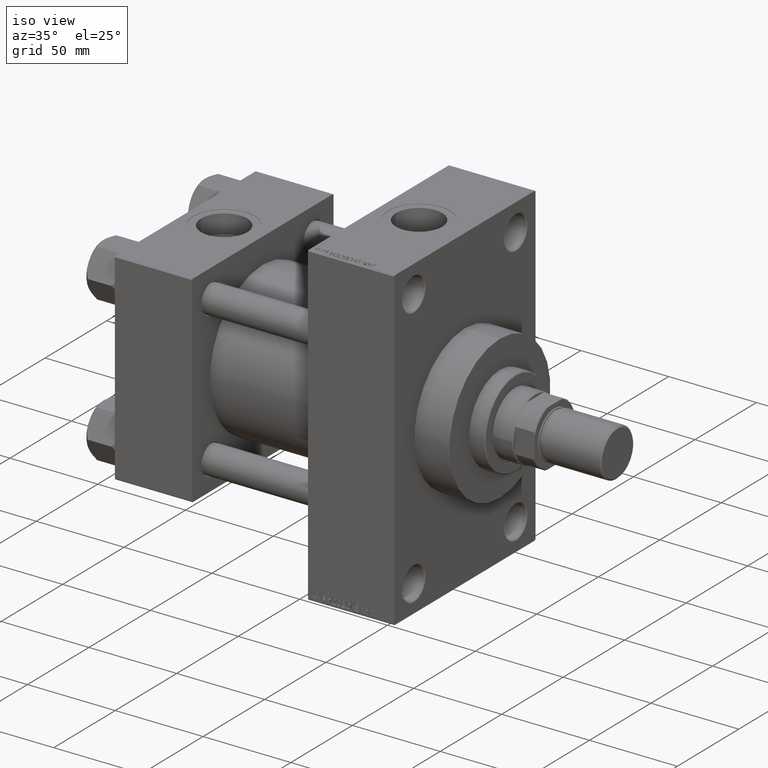
[diagram: clean part render]
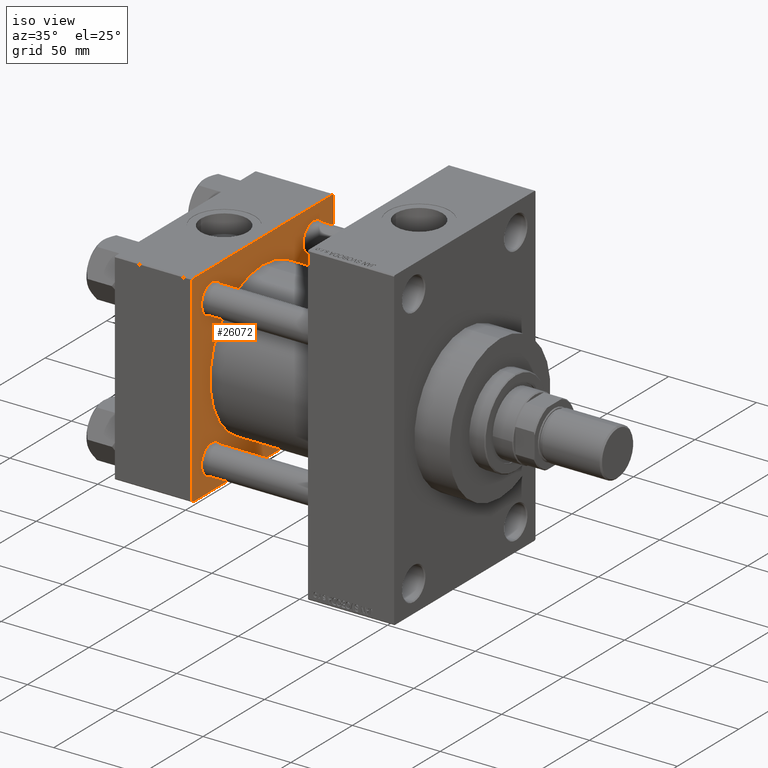
[diagram: same view with one face highlighted and labeled with its STEP entity id]
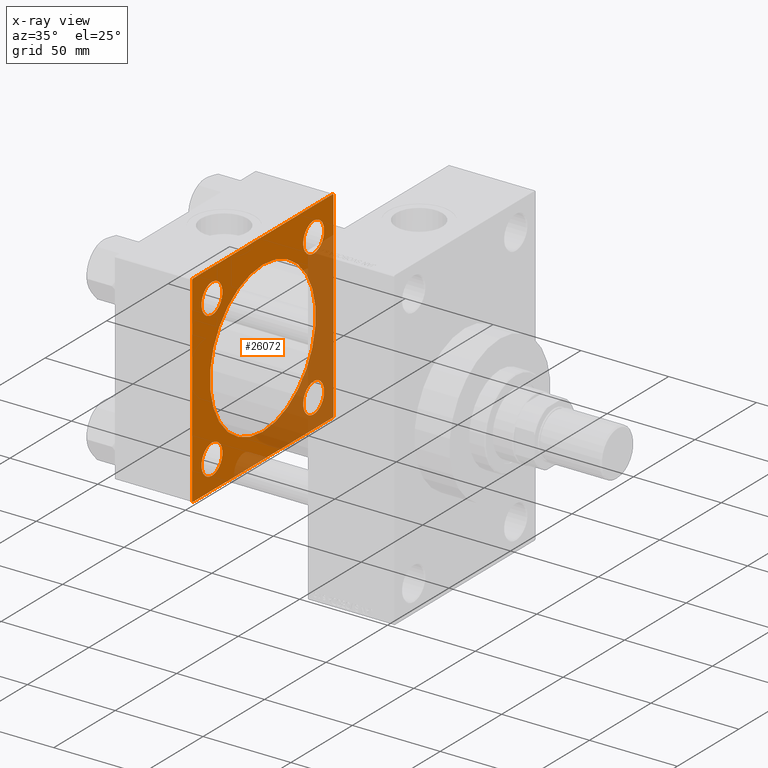
[diagram: x-ray of the same camera — body ghosted, the highlighted face saturated]
A machine part, iso view. The second image highlights one B-rep face of the part: STEP entity #26072.
The next image is the same camera in x-ray: the body ghosted, the highlighted face saturated — about 37% of this face is hidden behind the body in this view.
In plain terms, the highlighted planar face has unit normal (-1, 0, 0).
Its self-contained STEP definition (entity closure, byte-faithful):
#60 = CARTESIAN_POINT ( 'NONE',  ( 44.00000000000000000, -57.50000000000000711, -57.00000000000000711 ) ) ;
#327 = DIRECTION ( 'NONE',  ( 0.000000000000000000, -1.000000000000000000, -1.206764157201257045E-16 ) ) ;
#557 = ORIENTED_EDGE ( 'NONE', *, *, #47289, .T. ) ;
#938 = CARTESIAN_POINT ( 'NONE',  ( 44.00000000000000000, -57.50000000000000711, 57.00000000000000711 ) ) ;
#1040 = EDGE_LOOP ( 'NONE', ( #42411, #4625 ) ) ;
#1802 = VERTEX_POINT ( 'NONE', #4160 ) ;
#2218 = CARTESIAN_POINT ( 'NONE',  ( 44.00000000000000000, -57.00000000000000711, -57.50000000000000711 ) ) ;
#2308 = CARTESIAN_POINT ( 'NONE',  ( 44.00000000000000000, 57.00000000000000711, 57.50000000000000711 ) ) ;
#2398 = VERTEX_POINT ( 'NONE', #938 ) ;
#2480 = LINE ( 'NONE', #10520, #8208 ) ;
#2962 = DIRECTION ( 'NONE',  ( -0.000000000000000000, -0.7071067811865376918, -0.7071067811865573427 ) ) ;
#3523 = CARTESIAN_POINT ( 'NONE',  ( 44.00000000000000000, 57.49999999999999289, -57.00000000000000711 ) ) ;
#3969 = EDGE_CURVE ( 'NONE', #18703, #38638, #10614, .T. ) ;
#3995 = EDGE_LOOP ( 'NONE', ( #557, #7710 ) ) ;
#4160 = CARTESIAN_POINT ( 'NONE',  ( 44.00000000000000000, 2.663896022368408223E-15, -43.00000000000000000 ) ) ;
#4186 = VECTOR ( 'NONE', #327, 1000.000000000000000 ) ;
#4529 = DIRECTION ( 'NONE',  ( 0.000000000000000000, 0.000000000000000000, -1.000000000000000000 ) ) ;
#4625 = ORIENTED_EDGE ( 'NONE', *, *, #47716, .T. ) ;
#4730 = VERTEX_POINT ( 'NONE', #17537 ) ;
#4771 = EDGE_CURVE ( 'NONE', #1802, #4730, #42136, .T. ) ;
#4942 = ORIENTED_EDGE ( 'NONE', *, *, #12347, .T. ) ;
#5071 = ORIENTED_EDGE ( 'NONE', *, *, #19862, .F. ) ;
#5730 = DIRECTION ( 'NONE',  ( -0.000000000000000000, 0.000000000000000000, 1.000000000000000000 ) ) ;
#5831 = CIRCLE ( 'NONE', #22130, 43.00000000000000000 ) ;
#5870 = DIRECTION ( 'NONE',  ( 0.000000000000000000, 0.000000000000000000, 1.000000000000000000 ) ) ;
#5881 = DIRECTION ( 'NONE',  ( 0.000000000000000000, 0.7071067811865474617, -0.7071067811865474617 ) ) ;
#6629 = VECTOR ( 'NONE', #4529, 1000.000000000000000 ) ;
#7372 = ORIENTED_EDGE ( 'NONE', *, *, #18964, .T. ) ;
#7710 = ORIENTED_EDGE ( 'NONE', *, *, #47126, .T. ) ;
#7955 = DIRECTION ( 'NONE',  ( 0.000000000000000000, -0.7071067811865573427, 0.7071067811865376918 ) ) ;
#8208 = VECTOR ( 'NONE', #2962, 1000.000000000000114 ) ;
#8860 = VERTEX_POINT ( 'NONE', #3523 ) ;
#9154 = FACE_OUTER_BOUND ( 'NONE', #25373, .T. ) ;
#9296 = CIRCLE ( 'NONE', #43454, 8.500000000000090594 ) ;
#9374 = ORIENTED_EDGE ( 'NONE', *, *, #23004, .T. ) ;
#9388 = CARTESIAN_POINT ( 'NONE',  ( 44.00000000000000000, 41.34999999999999432, -41.35000000000000142 ) ) ;
#9828 = VERTEX_POINT ( 'NONE', #32526 ) ;
#10520 = CARTESIAN_POINT ( 'NONE',  ( 44.00000000000000000, -57.50000000000000711, 57.00000000000000711 ) ) ;
#10614 = LINE ( 'NONE', #28884, #14113 ) ;
#11370 = CARTESIAN_POINT ( 'NONE',  ( 44.00000000000000000, -57.00000000000003553, 57.49999999999999289 ) ) ;
#11655 = DIRECTION ( 'NONE',  ( -0.000000000000000000, 0.7071067811865376918, 0.7071067811865573427 ) ) ;
#11833 = LINE ( 'NONE', #26683, #6629 ) ;
#12347 = EDGE_CURVE ( 'NONE', #37379, #47671, #27950, .T. ) ;
#13034 = FACE_BOUND ( 'NONE', #41272, .T. ) ;
#13193 = DIRECTION ( 'NONE',  ( 0.000000000000000000, 0.000000000000000000, 1.000000000000000000 ) ) ;
#13270 = FACE_BOUND ( 'NONE', #16526, .T. ) ;
#14113 = VECTOR ( 'NONE', #36179, 1000.000000000000000 ) ;
#15719 = CARTESIAN_POINT ( 'NONE',  ( 44.00000000000000000, 57.00000000000000711, 57.50000000000000711 ) ) ;
#16526 = EDGE_LOOP ( 'NONE', ( #16853, #46991 ) ) ;
#16823 = CARTESIAN_POINT ( 'NONE',  ( 44.00000000000000000, -41.34999999999998721, -41.35000000000000853 ) ) ;
#16853 = ORIENTED_EDGE ( 'NONE', *, *, #22013, .F. ) ;
#17399 = VERTEX_POINT ( 'NONE', #36247 ) ;
#17537 = CARTESIAN_POINT ( 'NONE',  ( 44.00000000000000000, -2.602085213965210642E-15, 43.00000000000000000 ) ) ;
#17802 = AXIS2_PLACEMENT_3D ( 'NONE', #36386, #25894, #29560 ) ;
#17970 = VERTEX_POINT ( 'NONE', #30214 ) ;
#18432 = CIRCLE ( 'NONE', #28594, 8.500000000000090594 ) ;
#18579 = LINE ( 'NONE', #37101, #4186 ) ;
#18627 = CARTESIAN_POINT ( 'NONE',  ( 44.00000000000000000, 41.34999999999999432, -32.84999999999991616 ) ) ;
#18703 = VERTEX_POINT ( 'NONE', #2308 ) ;
#18964 = EDGE_CURVE ( 'NONE', #47671, #37379, #19681, .T. ) ;
#19548 = DIRECTION ( 'NONE',  ( -1.000000000000000000, 0.000000000000000000, -0.000000000000000000 ) ) ;
#19681 = CIRCLE ( 'NONE', #41474, 8.500000000000090594 ) ;
#19762 = ORIENTED_EDGE ( 'NONE', *, *, #3969, .T. ) ;
#19853 = CIRCLE ( 'NONE', #46268, 8.500000000000090594 ) ;
#19862 = EDGE_CURVE ( 'NONE', #9828, #25461, #18579, .T. ) ;
#20268 = DIRECTION ( 'NONE',  ( 0.000000000000000000, 0.000000000000000000, 1.000000000000000000 ) ) ;
#21011 = AXIS2_PLACEMENT_3D ( 'NONE', #28271, #36046, #5870 ) ;
#21798 = VERTEX_POINT ( 'NONE', #29900 ) ;
#22013 = EDGE_CURVE ( 'NONE', #4730, #1802, #5831, .T. ) ;
#22130 = AXIS2_PLACEMENT_3D ( 'NONE', #29846, #44673, #32540 ) ;
#22431 = VECTOR ( 'NONE', #24247, 1000.000000000000000 ) ;
#22659 = CARTESIAN_POINT ( 'NONE',  ( 44.00000000000000000, 41.34999999999999432, -41.35000000000000142 ) ) ;
#22665 = EDGE_CURVE ( 'NONE', #45826, #46953, #19853, .T. ) ;
#22906 = DIRECTION ( 'NONE',  ( -1.000000000000000000, 0.000000000000000000, -0.000000000000000000 ) ) ;
#22928 = CARTESIAN_POINT ( 'NONE',  ( 44.00000000000000000, -41.34999999999998721, -41.35000000000000853 ) ) ;
#23004 = EDGE_CURVE ( 'NONE', #38638, #2398, #2480, .T. ) ;
#23454 = CARTESIAN_POINT ( 'NONE',  ( 44.00000000000000000, 57.49999999999999289, 57.00000000000003553 ) ) ;
#23505 = EDGE_CURVE ( 'NONE', #2398, #28061, #11833, .T. ) ;
#23507 = EDGE_LOOP ( 'NONE', ( #33673, #35860 ) ) ;
#23751 = FACE_BOUND ( 'NONE', #1040, .T. ) ;
#23899 = LINE ( 'NONE', #2218, #44853 ) ;
#24219 = DIRECTION ( 'NONE',  ( -1.000000000000000000, 0.000000000000000000, -0.000000000000000000 ) ) ;
#24247 = DIRECTION ( 'NONE',  ( 0.000000000000000000, 0.000000000000000000, -1.000000000000000000 ) ) ;
#24273 = EDGE_CURVE ( 'NONE', #9828, #8860, #33564, .T. ) ;
#25373 = EDGE_LOOP ( 'NONE', ( #5071, #41905, #25830, #39013, #19762, #9374, #28811, #44817 ) ) ;
#25461 = VERTEX_POINT ( 'NONE', #35121 ) ;
#25830 = ORIENTED_EDGE ( 'NONE', *, *, #38684, .F. ) ;
#25894 = DIRECTION ( 'NONE',  ( -1.000000000000000000, 0.000000000000000000, -0.000000000000000000 ) ) ;
#26072 = ADVANCED_FACE ( 'NONE', ( #42248, #23751, #13034, #27652, #13270, #9154 ), #27886, .F. ) ;
#26241 = CIRCLE ( 'NONE', #37152, 8.500000000000090594 ) ;
#26570 = CARTESIAN_POINT ( 'NONE',  ( 44.00000000000000000, -41.34999999999998721, 32.84999999999992326 ) ) ;
#26593 = DIRECTION ( 'NONE',  ( -1.000000000000000000, 0.000000000000000000, -0.000000000000000000 ) ) ;
#26683 = CARTESIAN_POINT ( 'NONE',  ( 44.00000000000000000, -57.50000000000000711, 57.49999999999999289 ) ) ;
#26970 = CARTESIAN_POINT ( 'NONE',  ( 44.00000000000000000, -2.602085213965210642E-15, 0.000000000000000000 ) ) ;
#27652 = FACE_BOUND ( 'NONE', #3995, .T. ) ;
#27886 = PLANE ( 'NONE',  #43934 ) ;
#27950 = CIRCLE ( 'NONE', #21011, 8.500000000000090594 ) ;
#28061 = VERTEX_POINT ( 'NONE', #60 ) ;
#28128 = DIRECTION ( 'NONE',  ( -1.000000000000000000, 0.000000000000000000, -0.000000000000000000 ) ) ;
#28271 = CARTESIAN_POINT ( 'NONE',  ( 44.00000000000000000, -41.34999999999998721, 41.35000000000000853 ) ) ;
#28594 = AXIS2_PLACEMENT_3D ( 'NONE', #22928, #26593, #34140 ) ;
#28811 = ORIENTED_EDGE ( 'NONE', *, *, #23505, .T. ) ;
#28884 = CARTESIAN_POINT ( 'NONE',  ( 44.00000000000000000, 57.49999999999999289, 57.50000000000000711 ) ) ;
#29560 = DIRECTION ( 'NONE',  ( 0.000000000000000000, 0.000000000000000000, 1.000000000000000000 ) ) ;
#29846 = CARTESIAN_POINT ( 'NONE',  ( 44.00000000000000000, -2.602085213965210642E-15, 0.000000000000000000 ) ) ;
#29900 = CARTESIAN_POINT ( 'NONE',  ( 44.00000000000000000, -41.34999999999998721, -49.85000000000010090 ) ) ;
#30214 = CARTESIAN_POINT ( 'NONE',  ( 44.00000000000000000, -41.34999999999998721, -32.84999999999992326 ) ) ;
#31273 = EDGE_CURVE ( 'NONE', #21798, #17970, #18432, .T. ) ;
#31330 = EDGE_CURVE ( 'NONE', #28061, #25461, #23899, .T. ) ;
#31538 = DIRECTION ( 'NONE',  ( 0.000000000000000000, 0.000000000000000000, 1.000000000000000000 ) ) ;
#31841 = CIRCLE ( 'NONE', #17802, 8.500000000000090594 ) ;
#31947 = CARTESIAN_POINT ( 'NONE',  ( 44.00000000000000000, 41.34999999999999432, 49.85000000000009379 ) ) ;
#32337 = VERTEX_POINT ( 'NONE', #31947 ) ;
#32365 = EDGE_CURVE ( 'NONE', #17970, #21798, #26241, .T. ) ;
#32526 = CARTESIAN_POINT ( 'NONE',  ( 44.00000000000000000, 57.00000000000002132, -57.49999999999999289 ) ) ;
#32540 = DIRECTION ( 'NONE',  ( 0.000000000000000000, 0.000000000000000000, 1.000000000000000000 ) ) ;
#33564 = LINE ( 'NONE', #36741, #47849 ) ;
#33673 = ORIENTED_EDGE ( 'NONE', *, *, #31273, .T. ) ;
#34140 = DIRECTION ( 'NONE',  ( 0.000000000000000000, 0.000000000000000000, 1.000000000000000000 ) ) ;
#34975 = CARTESIAN_POINT ( 'NONE',  ( 44.00000000000000000, 57.49999999999999289, 57.50000000000000711 ) ) ;
#35121 = CARTESIAN_POINT ( 'NONE',  ( 44.00000000000000000, -57.00000000000000711, -57.50000000000000711 ) ) ;
#35527 = CARTESIAN_POINT ( 'NONE',  ( 44.00000000000000000, 41.34999999999999432, -49.85000000000009379 ) ) ;
#35860 = ORIENTED_EDGE ( 'NONE', *, *, #32365, .T. ) ;
#35948 = DIRECTION ( 'NONE',  ( 1.000000000000000000, -0.000000000000000000, 0.000000000000000000 ) ) ;
#36046 = DIRECTION ( 'NONE',  ( -1.000000000000000000, 0.000000000000000000, -0.000000000000000000 ) ) ;
#36179 = DIRECTION ( 'NONE',  ( 0.000000000000000000, -1.000000000000000000, -1.206764157201257045E-16 ) ) ;
#36247 = CARTESIAN_POINT ( 'NONE',  ( 44.00000000000000000, 41.34999999999999432, 32.84999999999991616 ) ) ;
#36386 = CARTESIAN_POINT ( 'NONE',  ( 44.00000000000000000, 41.34999999999999432, 41.35000000000000142 ) ) ;
#36741 = CARTESIAN_POINT ( 'NONE',  ( 44.00000000000000000, 57.49999999999999289, -57.00000000000000711 ) ) ;
#37101 = CARTESIAN_POINT ( 'NONE',  ( 44.00000000000000000, 57.49999999999999289, -57.49999999999999289 ) ) ;
#37152 = AXIS2_PLACEMENT_3D ( 'NONE', #16823, #46526, #13193 ) ;
#37379 = VERTEX_POINT ( 'NONE', #41601 ) ;
#38054 = CARTESIAN_POINT ( 'NONE',  ( 44.00000000000000000, 41.34999999999999432, 41.35000000000000142 ) ) ;
#38083 = CIRCLE ( 'NONE', #45052, 8.500000000000090594 ) ;
#38542 = CARTESIAN_POINT ( 'NONE',  ( 44.00000000000000000, -41.34999999999998721, 41.35000000000000853 ) ) ;
#38638 = VERTEX_POINT ( 'NONE', #11370 ) ;
#38684 = EDGE_CURVE ( 'NONE', #47310, #8860, #46869, .T. ) ;
#38777 = DIRECTION ( 'NONE',  ( -1.000000000000000000, 0.000000000000000000, -0.000000000000000000 ) ) ;
#39013 = ORIENTED_EDGE ( 'NONE', *, *, #43734, .T. ) ;
#40264 = VECTOR ( 'NONE', #7955, 1000.000000000000114 ) ;
#40556 = AXIS2_PLACEMENT_3D ( 'NONE', #26970, #35948, #46175 ) ;
#41272 = EDGE_LOOP ( 'NONE', ( #7372, #4942 ) ) ;
#41281 = LINE ( 'NONE', #15719, #40264 ) ;
#41474 = AXIS2_PLACEMENT_3D ( 'NONE', #38542, #38777, #20268 ) ;
#41601 = CARTESIAN_POINT ( 'NONE',  ( 44.00000000000000000, -41.34999999999998721, 49.85000000000010090 ) ) ;
#41905 = ORIENTED_EDGE ( 'NONE', *, *, #24273, .T. ) ;
#42136 = CIRCLE ( 'NONE', #40556, 43.00000000000000000 ) ;
#42248 = FACE_BOUND ( 'NONE', #23507, .T. ) ;
#42411 = ORIENTED_EDGE ( 'NONE', *, *, #22665, .T. ) ;
#42715 = CARTESIAN_POINT ( 'NONE',  ( 44.00000000000000000, 0.000000000000000000, 0.000000000000000000 ) ) ;
#43454 = AXIS2_PLACEMENT_3D ( 'NONE', #38054, #19548, #44860 ) ;
#43734 = EDGE_CURVE ( 'NONE', #47310, #18703, #41281, .T. ) ;
#43934 = AXIS2_PLACEMENT_3D ( 'NONE', #42715, #28128, #5730 ) ;
#44332 = DIRECTION ( 'NONE',  ( 0.000000000000000000, 0.000000000000000000, 1.000000000000000000 ) ) ;
#44673 = DIRECTION ( 'NONE',  ( 1.000000000000000000, -0.000000000000000000, 0.000000000000000000 ) ) ;
#44817 = ORIENTED_EDGE ( 'NONE', *, *, #31330, .T. ) ;
#44853 = VECTOR ( 'NONE', #5881, 1000.000000000000114 ) ;
#44860 = DIRECTION ( 'NONE',  ( 0.000000000000000000, 0.000000000000000000, 1.000000000000000000 ) ) ;
#45052 = AXIS2_PLACEMENT_3D ( 'NONE', #22659, #22906, #44332 ) ;
#45826 = VERTEX_POINT ( 'NONE', #35527 ) ;
#46175 = DIRECTION ( 'NONE',  ( 0.000000000000000000, 0.000000000000000000, 1.000000000000000000 ) ) ;
#46268 = AXIS2_PLACEMENT_3D ( 'NONE', #9388, #24219, #31538 ) ;
#46526 = DIRECTION ( 'NONE',  ( -1.000000000000000000, 0.000000000000000000, -0.000000000000000000 ) ) ;
#46869 = LINE ( 'NONE', #34975, #22431 ) ;
#46953 = VERTEX_POINT ( 'NONE', #18627 ) ;
#46991 = ORIENTED_EDGE ( 'NONE', *, *, #4771, .F. ) ;
#47126 = EDGE_CURVE ( 'NONE', #32337, #17399, #31841, .T. ) ;
#47289 = EDGE_CURVE ( 'NONE', #17399, #32337, #9296, .T. ) ;
#47310 = VERTEX_POINT ( 'NONE', #23454 ) ;
#47671 = VERTEX_POINT ( 'NONE', #26570 ) ;
#47716 = EDGE_CURVE ( 'NONE', #46953, #45826, #38083, .T. ) ;
#47849 = VECTOR ( 'NONE', #11655, 1000.000000000000114 ) ;